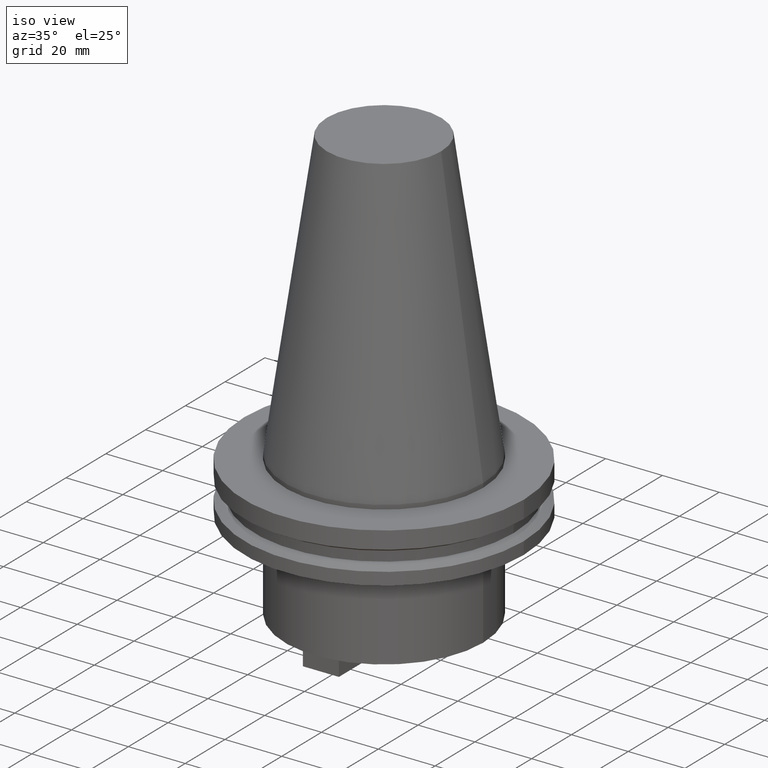
[diagram: clean part render]
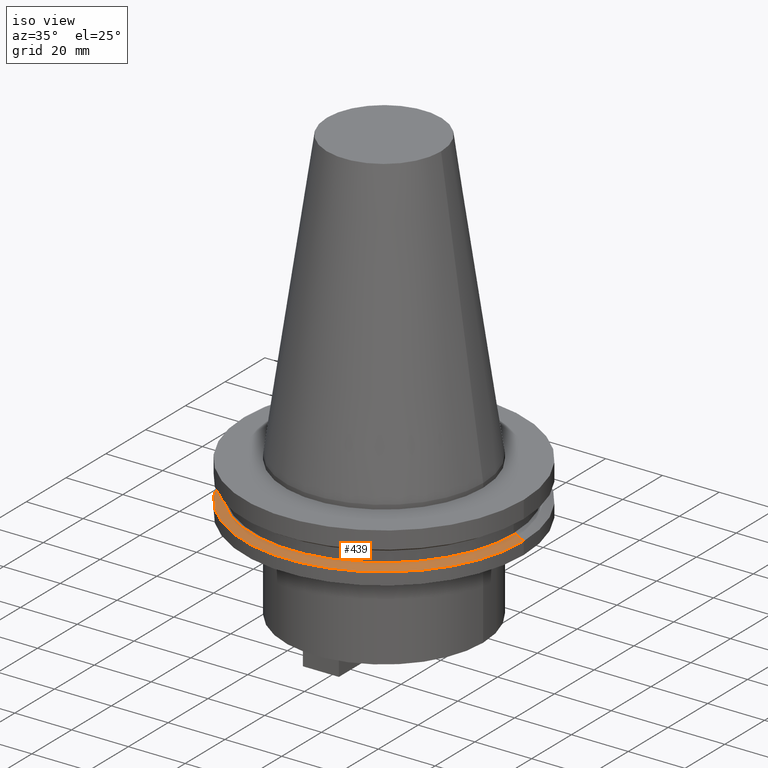
[diagram: same view with one face highlighted and labeled with its STEP entity id]
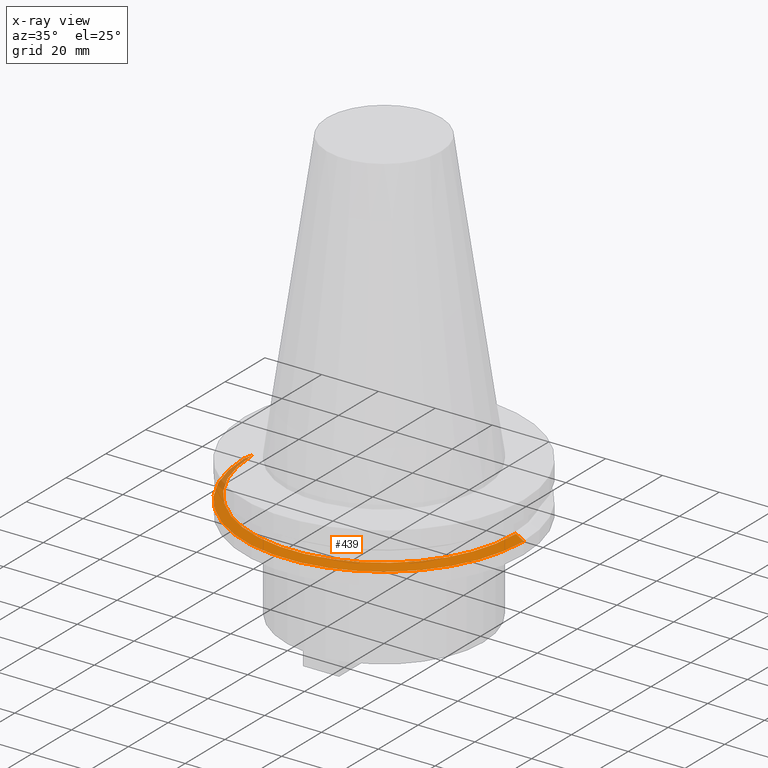
[diagram: x-ray of the same camera — body ghosted, the highlighted face saturated]
A machine part, iso view. The second image highlights one B-rep face of the part: STEP entity #439.
The next image is the same camera in x-ray: the body ghosted, the highlighted face saturated — about 5% of this face is hidden behind the body in this view.
In plain terms, the highlighted conical surface has half-angle 60 deg.
Its self-contained STEP definition (entity closure, byte-faithful):
#4 = CIRCLE ( 'NONE', #100, 46.43919780457007818 ) ;
#51 = AXIS2_PLACEMENT_3D ( 'NONE', #720, #488, #944 ) ;
#56 = VERTEX_POINT ( 'NONE', #733 ) ;
#75 = CARTESIAN_POINT ( 'NONE',  ( 0.000000000000000000, 0.000000000000000000, -13.05499999999999794 ) ) ;
#100 = AXIS2_PLACEMENT_3D ( 'NONE', #75, #388, #842 ) ;
#211 = EDGE_LOOP ( 'NONE', ( #591, #586, #421, #748 ) ) ;
#213 = CARTESIAN_POINT ( 'NONE',  ( 46.43919780457007818, 5.857130358318725715E-15, -13.05499999999999794 ) ) ;
#214 = AXIS2_PLACEMENT_3D ( 'NONE', #908, #828, #962 ) ;
#220 = EDGE_CURVE ( 'NONE', #267, #56, #397, .T. ) ;
#267 = VERTEX_POINT ( 'NONE', #918 ) ;
#279 = VERTEX_POINT ( 'NONE', #213 ) ;
#289 = EDGE_CURVE ( 'NONE', #303, #267, #782, .T. ) ;
#303 = VERTEX_POINT ( 'NONE', #859 ) ;
#307 = CARTESIAN_POINT ( 'NONE',  ( -49.21499999999998920, 0.000000000000000000, -14.65761014474876944 ) ) ;
#324 = LINE ( 'NONE', #798, #493 ) ;
#334 = DIRECTION ( 'NONE',  ( 0.8660254037844169472, 1.060575238724880168E-16, -0.5000000000000375255 ) ) ;
#388 = DIRECTION ( 'NONE',  ( -0.000000000000000000, -0.000000000000000000, 1.000000000000000000 ) ) ;
#397 = CIRCLE ( 'NONE', #214, 49.21499999999998920 ) ;
#421 = ORIENTED_EDGE ( 'NONE', *, *, #289, .T. ) ;
#439 = ADVANCED_FACE ( 'NONE', ( #875 ), #803, .T. ) ;
#453 = EDGE_CURVE ( 'NONE', #279, #56, #324, .T. ) ;
#488 = DIRECTION ( 'NONE',  ( 0.000000000000000000, 0.000000000000000000, -1.000000000000000000 ) ) ;
#493 = VECTOR ( 'NONE', #334, 1000.000000000000114 ) ;
#586 = ORIENTED_EDGE ( 'NONE', *, *, #703, .F. ) ;
#591 = ORIENTED_EDGE ( 'NONE', *, *, #453, .F. ) ;
#686 = DIRECTION ( 'NONE',  ( -0.8660254037844169472, 0.000000000000000000, -0.5000000000000375255 ) ) ;
#703 = EDGE_CURVE ( 'NONE', #303, #279, #4, .T. ) ;
#720 = CARTESIAN_POINT ( 'NONE',  ( 0.000000000000000000, 0.000000000000000000, -14.65761014474876944 ) ) ;
#733 = CARTESIAN_POINT ( 'NONE',  ( 49.21499999999998920, 0.000000000000000000, -14.65761014474876944 ) ) ;
#748 = ORIENTED_EDGE ( 'NONE', *, *, #220, .T. ) ;
#782 = LINE ( 'NONE', #307, #930 ) ;
#798 = CARTESIAN_POINT ( 'NONE',  ( 49.21499999999998920, 6.027099222003697037E-15, -14.65761014474876944 ) ) ;
#803 = CONICAL_SURFACE ( 'NONE', #51, 49.21499999999998920, 1.047197551196554333 ) ;
#828 = DIRECTION ( 'NONE',  ( -0.000000000000000000, -0.000000000000000000, 1.000000000000000000 ) ) ;
#842 = DIRECTION ( 'NONE',  ( 1.000000000000000000, 0.000000000000000000, 0.000000000000000000 ) ) ;
#859 = CARTESIAN_POINT ( 'NONE',  ( -46.43919780457007818, 0.000000000000000000, -13.05499999999999794 ) ) ;
#875 = FACE_OUTER_BOUND ( 'NONE', #211, .T. ) ;
#908 = CARTESIAN_POINT ( 'NONE',  ( 0.000000000000000000, 0.000000000000000000, -14.65761014474876944 ) ) ;
#918 = CARTESIAN_POINT ( 'NONE',  ( -49.21499999999998920, 6.027099222003697037E-15, -14.65761014474876944 ) ) ;
#930 = VECTOR ( 'NONE', #686, 1000.000000000000114 ) ;
#944 = DIRECTION ( 'NONE',  ( -1.000000000000000000, 0.000000000000000000, 0.000000000000000000 ) ) ;
#962 = DIRECTION ( 'NONE',  ( 1.000000000000000000, 0.000000000000000000, 0.000000000000000000 ) ) ;